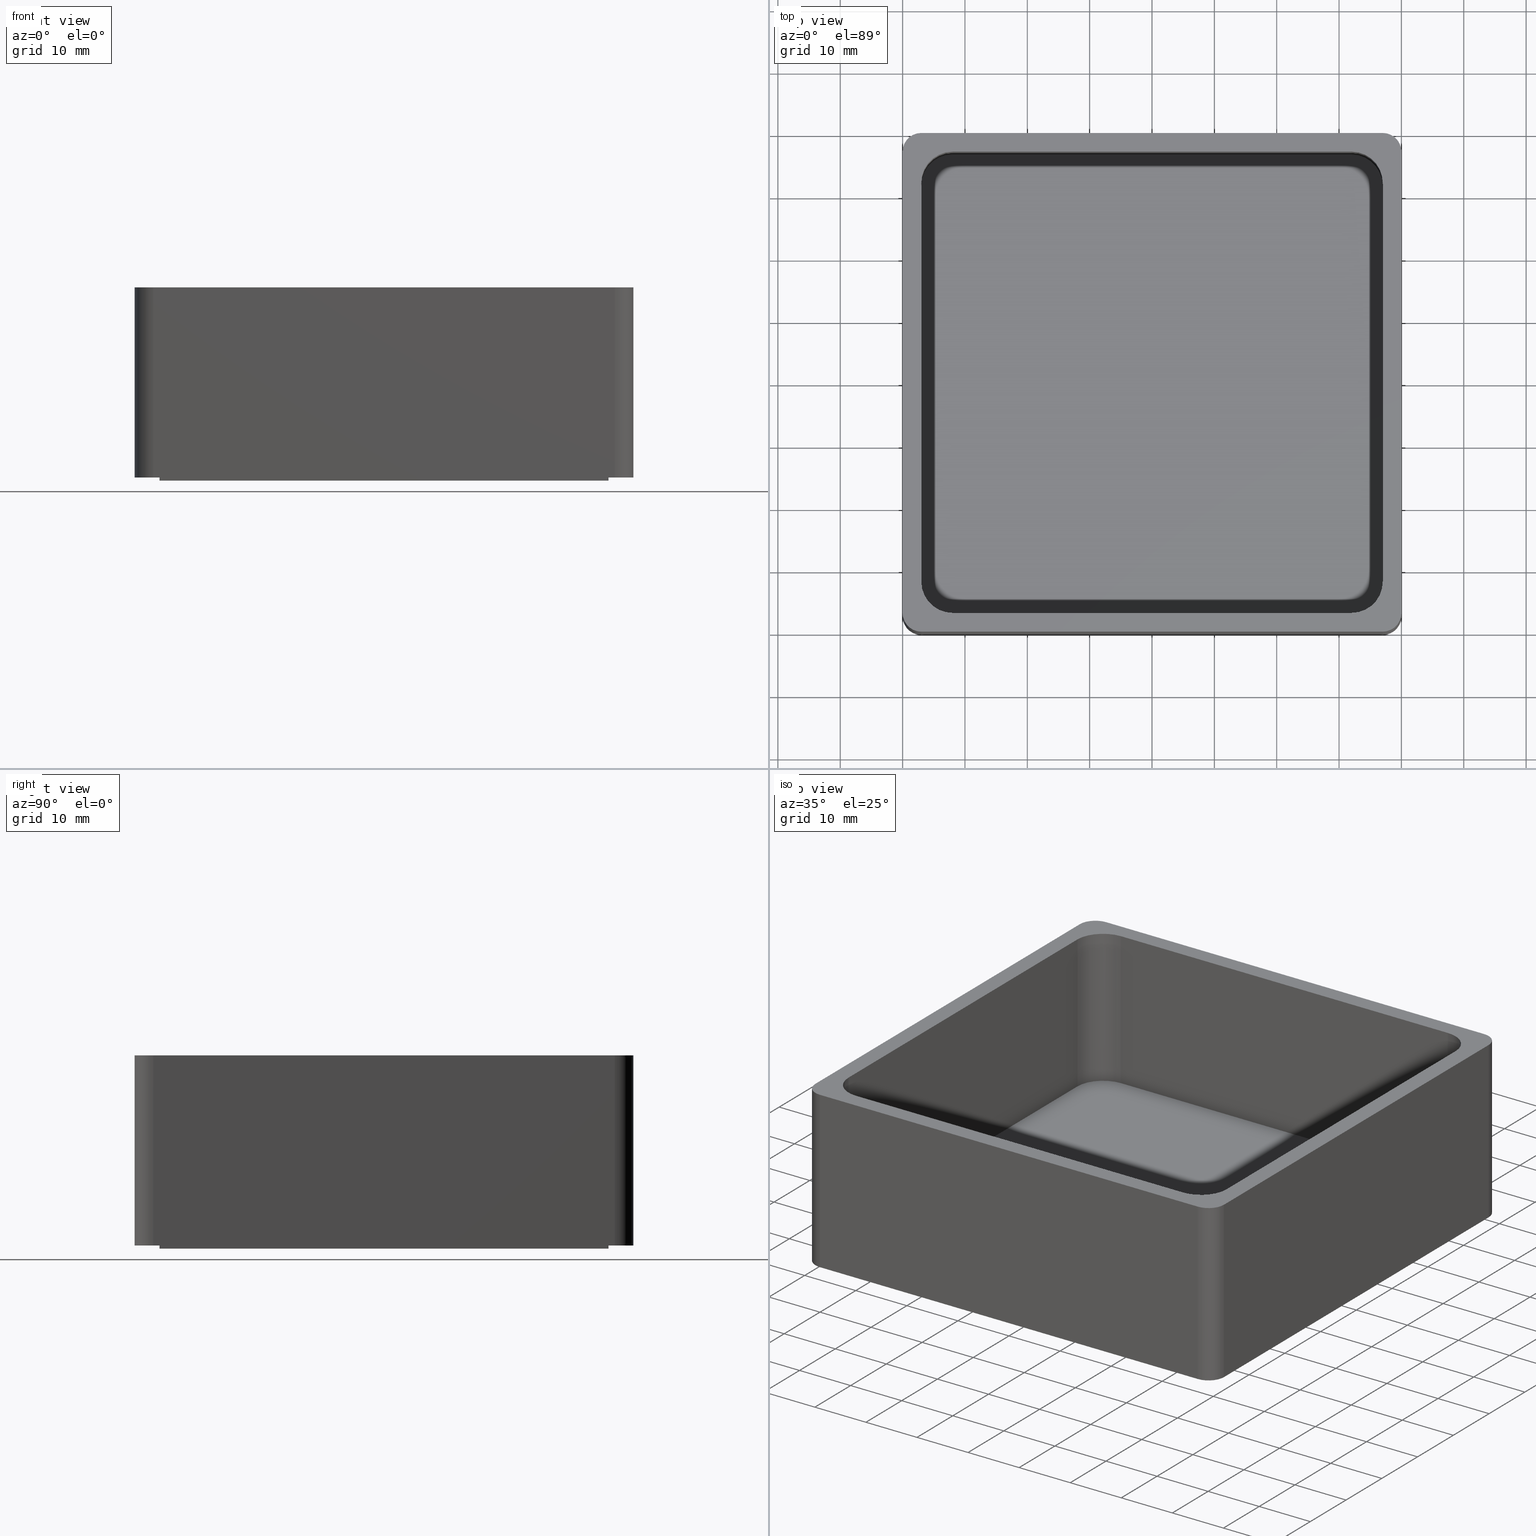
[diagram: canonical four-view strip — front | top / right | iso, engineering-drawing reading convention]
A machine part, canonical four-view strip (front | top / right | iso — engineering-drawing reading convention). The complete STEP part file that produces these views, byte-faithful:
ISO-10303-21;
HEADER;
/* Generated by software containing ST-Developer
 * from STEP Tools, Inc. (www.steptools.com) 
 */

FILE_DESCRIPTION(
/* description */ (''),
/* implementation_level */ '2;1');

FILE_NAME(
/* name */ '\\\\SYNOLOGYNAS\\web\\db2\\PR24-7575\\\X2\B3C4BA74\X0\\\DR
_PR24-7575.stp',
/* time_stamp */ '2022-10-14T15:53:04+09:00',
/* author */ ('user'),
/* organization */ (''),
/* preprocessor_version */ 'ST-DEVELOPER v15.6',
/* originating_system */ 'Autodesk Inventor 2015',
/* authorisation */ '');

FILE_SCHEMA (('AUTOMOTIVE_DESIGN { 1 0 10303 214 3 1 1 }'));
ENDSEC;

DATA;
#10=MECHANICAL_DESIGN_GEOMETRIC_PRESENTATION_REPRESENTATION('',(#13),#735);
#11=SHAPE_REPRESENTATION_RELATIONSHIP('SRR','None',#744,#12);
#12=ADVANCED_BREP_SHAPE_REPRESENTATION($,(#14),#734);
#13=STYLED_ITEM('',(#753),#14);
#14=MANIFOLD_SOLID_BREP('\X2\C194B9ACB4DC\X0\1',#439);
#15=FACE_BOUND('',#74,.T.);
#16=FACE_BOUND('',#82,.T.);
#17=PLANE('',#444);
#18=PLANE('',#448);
#19=PLANE('',#452);
#20=PLANE('',#456);
#21=PLANE('',#457);
#22=PLANE('',#458);
#23=PLANE('',#459);
#24=PLANE('',#460);
#25=PLANE('',#461);
#26=PLANE('',#462);
#27=PLANE('',#466);
#28=PLANE('',#467);
#29=PLANE('',#473);
#30=PLANE('',#476);
#31=PLANE('',#479);
#32=PLANE('',#480);
#33=FACE_OUTER_BOUND('',#57,.T.);
#34=FACE_OUTER_BOUND('',#58,.T.);
#35=FACE_OUTER_BOUND('',#59,.T.);
#36=FACE_OUTER_BOUND('',#60,.T.);
#37=FACE_OUTER_BOUND('',#61,.T.);
#38=FACE_OUTER_BOUND('',#62,.T.);
#39=FACE_OUTER_BOUND('',#63,.T.);
#40=FACE_OUTER_BOUND('',#64,.T.);
#41=FACE_OUTER_BOUND('',#65,.T.);
#42=FACE_OUTER_BOUND('',#66,.T.);
#43=FACE_OUTER_BOUND('',#67,.T.);
#44=FACE_OUTER_BOUND('',#68,.T.);
#45=FACE_OUTER_BOUND('',#69,.T.);
#46=FACE_OUTER_BOUND('',#70,.T.);
#47=FACE_OUTER_BOUND('',#71,.T.);
#48=FACE_OUTER_BOUND('',#72,.T.);
#49=FACE_OUTER_BOUND('',#73,.T.);
#50=FACE_OUTER_BOUND('',#75,.T.);
#51=FACE_OUTER_BOUND('',#76,.T.);
#52=FACE_OUTER_BOUND('',#77,.T.);
#53=FACE_OUTER_BOUND('',#78,.T.);
#54=FACE_OUTER_BOUND('',#79,.T.);
#55=FACE_OUTER_BOUND('',#80,.T.);
#56=FACE_OUTER_BOUND('',#81,.T.);
#57=EDGE_LOOP('',(#287,#288,#289,#290));
#58=EDGE_LOOP('',(#291,#292,#293,#294));
#59=EDGE_LOOP('',(#295,#296,#297,#298));
#60=EDGE_LOOP('',(#299,#300,#301,#302));
#61=EDGE_LOOP('',(#303,#304,#305,#306));
#62=EDGE_LOOP('',(#307,#308,#309,#310));
#63=EDGE_LOOP('',(#311,#312,#313,#314));
#64=EDGE_LOOP('',(#315,#316,#317,#318));
#65=EDGE_LOOP('',(#319,#320,#321,#322,#323,#324,#325,#326));
#66=EDGE_LOOP('',(#327,#328,#329,#330));
#67=EDGE_LOOP('',(#331,#332,#333,#334));
#68=EDGE_LOOP('',(#335,#336,#337,#338));
#69=EDGE_LOOP('',(#339,#340,#341,#342));
#70=EDGE_LOOP('',(#343,#344,#345,#346));
#71=EDGE_LOOP('',(#347,#348,#349,#350));
#72=EDGE_LOOP('',(#351,#352,#353,#354));
#73=EDGE_LOOP('',(#355,#356,#357,#358,#359,#360,#361,#362));
#74=EDGE_LOOP('',(#363,#364,#365,#366,#367,#368,#369,#370));
#75=EDGE_LOOP('',(#371,#372,#373,#374));
#76=EDGE_LOOP('',(#375,#376,#377,#378));
#77=EDGE_LOOP('',(#379,#380,#381,#382));
#78=EDGE_LOOP('',(#383,#384,#385,#386));
#79=EDGE_LOOP('',(#387,#388,#389,#390));
#80=EDGE_LOOP('',(#391,#392,#393,#394));
#81=EDGE_LOOP('',(#395,#396,#397,#398,#399,#400,#401,#402));
#82=EDGE_LOOP('',(#403,#404,#405,#406));
#83=LINE('',#613,#127);
#84=LINE('',#616,#128);
#85=LINE('',#619,#129);
#86=LINE('',#621,#130);
#87=LINE('',#622,#131);
#88=LINE('',#627,#132);
#89=LINE('',#631,#133);
#90=LINE('',#633,#134);
#91=LINE('',#634,#135);
#92=LINE('',#639,#136);
#93=LINE('',#643,#137);
#94=LINE('',#645,#138);
#95=LINE('',#646,#139);
#96=LINE('',#651,#140);
#97=LINE('',#654,#141);
#98=LINE('',#655,#142);
#99=LINE('',#660,#143);
#100=LINE('',#662,#144);
#101=LINE('',#664,#145);
#102=LINE('',#665,#146);
#103=LINE('',#668,#147);
#104=LINE('',#670,#148);
#105=LINE('',#671,#149);
#106=LINE('',#674,#150);
#107=LINE('',#676,#151);
#108=LINE('',#677,#152);
#109=LINE('',#679,#153);
#110=LINE('',#680,#154);
#111=LINE('',#687,#155);
#112=LINE('',#690,#156);
#113=LINE('',#693,#157);
#114=LINE('',#695,#158);
#115=LINE('',#696,#159);
#116=LINE('',#699,#160);
#117=LINE('',#703,#161);
#118=LINE('',#707,#162);
#119=LINE('',#711,#163);
#120=LINE('',#715,#164);
#121=LINE('',#716,#165);
#122=LINE('',#719,#166);
#123=LINE('',#722,#167);
#124=LINE('',#724,#168);
#125=LINE('',#727,#169);
#126=LINE('',#730,#170);
#127=VECTOR('',#487,26.);
#128=VECTOR('',#490,26.);
#129=VECTOR('',#493,64.);
#130=VECTOR('',#494,26.);
#131=VECTOR('',#495,64.);
#132=VECTOR('',#500,26.);
#133=VECTOR('',#505,64.);
#134=VECTOR('',#506,26.);
#135=VECTOR('',#507,64.);
#136=VECTOR('',#512,26.);
#137=VECTOR('',#517,64.);
#138=VECTOR('',#518,26.);
#139=VECTOR('',#519,64.);
#140=VECTOR('',#524,26.);
#141=VECTOR('',#529,64.);
#142=VECTOR('',#530,64.);
#143=VECTOR('',#535,72.);
#144=VECTOR('',#536,0.5);
#145=VECTOR('',#537,72.);
#146=VECTOR('',#538,0.5);
#147=VECTOR('',#541,72.);
#148=VECTOR('',#542,72.);
#149=VECTOR('',#543,0.5);
#150=VECTOR('',#546,72.);
#151=VECTOR('',#547,72.);
#152=VECTOR('',#548,0.5);
#153=VECTOR('',#551,72.);
#154=VECTOR('',#552,72.);
#155=VECTOR('',#559,30.5);
#156=VECTOR('',#562,30.5);
#157=VECTOR('',#565,74.);
#158=VECTOR('',#566,30.5);
#159=VECTOR('',#567,74.);
#160=VECTOR('',#570,74.);
#161=VECTOR('',#573,74.);
#162=VECTOR('',#576,74.);
#163=VECTOR('',#581,30.5);
#164=VECTOR('',#586,30.5);
#165=VECTOR('',#587,74.);
#166=VECTOR('',#590,30.5);
#167=VECTOR('',#593,30.5);
#168=VECTOR('',#596,74.);
#169=VECTOR('',#599,30.5);
#170=VECTOR('',#604,74.);
#171=CIRCLE('',#442,5.00000000000002);
#172=CIRCLE('',#443,5.00000000000002);
#173=CIRCLE('',#446,4.99999999999999);
#174=CIRCLE('',#447,4.99999999999999);
#175=CIRCLE('',#450,5.00000000000002);
#176=CIRCLE('',#451,5.00000000000002);
#177=CIRCLE('',#454,5.);
#178=CIRCLE('',#455,5.);
#179=CIRCLE('',#464,3.);
#180=CIRCLE('',#465,3.);
#181=CIRCLE('',#468,3.);
#182=CIRCLE('',#469,3.);
#183=CIRCLE('',#470,3.);
#184=CIRCLE('',#472,3.);
#185=CIRCLE('',#475,3.);
#186=CIRCLE('',#478,3.);
#187=VERTEX_POINT('',#609);
#188=VERTEX_POINT('',#610);
#189=VERTEX_POINT('',#612);
#190=VERTEX_POINT('',#614);
#191=VERTEX_POINT('',#618);
#192=VERTEX_POINT('',#620);
#193=VERTEX_POINT('',#624);
#194=VERTEX_POINT('',#626);
#195=VERTEX_POINT('',#630);
#196=VERTEX_POINT('',#632);
#197=VERTEX_POINT('',#636);
#198=VERTEX_POINT('',#638);
#199=VERTEX_POINT('',#642);
#200=VERTEX_POINT('',#644);
#201=VERTEX_POINT('',#648);
#202=VERTEX_POINT('',#650);
#203=VERTEX_POINT('',#658);
#204=VERTEX_POINT('',#659);
#205=VERTEX_POINT('',#661);
#206=VERTEX_POINT('',#663);
#207=VERTEX_POINT('',#667);
#208=VERTEX_POINT('',#669);
#209=VERTEX_POINT('',#673);
#210=VERTEX_POINT('',#675);
#211=VERTEX_POINT('',#683);
#212=VERTEX_POINT('',#684);
#213=VERTEX_POINT('',#686);
#214=VERTEX_POINT('',#688);
#215=VERTEX_POINT('',#692);
#216=VERTEX_POINT('',#694);
#217=VERTEX_POINT('',#698);
#218=VERTEX_POINT('',#700);
#219=VERTEX_POINT('',#702);
#220=VERTEX_POINT('',#704);
#221=VERTEX_POINT('',#706);
#222=VERTEX_POINT('',#710);
#223=VERTEX_POINT('',#714);
#224=VERTEX_POINT('',#718);
#225=VERTEX_POINT('',#720);
#226=VERTEX_POINT('',#726);
#227=EDGE_CURVE('',#187,#188,#171,.T.);
#228=EDGE_CURVE('',#187,#189,#83,.T.);
#229=EDGE_CURVE('',#189,#190,#172,.T.);
#230=EDGE_CURVE('',#188,#190,#84,.T.);
#231=EDGE_CURVE('',#191,#187,#85,.T.);
#232=EDGE_CURVE('',#191,#192,#86,.T.);
#233=EDGE_CURVE('',#192,#189,#87,.T.);
#234=EDGE_CURVE('',#193,#191,#173,.T.);
#235=EDGE_CURVE('',#193,#194,#88,.T.);
#236=EDGE_CURVE('',#194,#192,#174,.T.);
#237=EDGE_CURVE('',#195,#193,#89,.T.);
#238=EDGE_CURVE('',#195,#196,#90,.T.);
#239=EDGE_CURVE('',#196,#194,#91,.T.);
#240=EDGE_CURVE('',#197,#195,#175,.T.);
#241=EDGE_CURVE('',#197,#198,#92,.T.);
#242=EDGE_CURVE('',#198,#196,#176,.T.);
#243=EDGE_CURVE('',#199,#197,#93,.T.);
#244=EDGE_CURVE('',#199,#200,#94,.T.);
#245=EDGE_CURVE('',#200,#198,#95,.T.);
#246=EDGE_CURVE('',#201,#199,#177,.T.);
#247=EDGE_CURVE('',#201,#202,#96,.T.);
#248=EDGE_CURVE('',#202,#200,#178,.T.);
#249=EDGE_CURVE('',#188,#201,#97,.T.);
#250=EDGE_CURVE('',#190,#202,#98,.T.);
#251=EDGE_CURVE('',#203,#204,#99,.T.);
#252=EDGE_CURVE('',#203,#205,#100,.T.);
#253=EDGE_CURVE('',#206,#205,#101,.T.);
#254=EDGE_CURVE('',#204,#206,#102,.T.);
#255=EDGE_CURVE('',#204,#207,#103,.T.);
#256=EDGE_CURVE('',#208,#206,#104,.T.);
#257=EDGE_CURVE('',#207,#208,#105,.T.);
#258=EDGE_CURVE('',#207,#209,#106,.T.);
#259=EDGE_CURVE('',#210,#208,#107,.T.);
#260=EDGE_CURVE('',#209,#210,#108,.T.);
#261=EDGE_CURVE('',#209,#203,#109,.T.);
#262=EDGE_CURVE('',#205,#210,#110,.T.);
#263=EDGE_CURVE('',#211,#212,#179,.T.);
#264=EDGE_CURVE('',#212,#213,#111,.T.);
#265=EDGE_CURVE('',#213,#214,#180,.T.);
#266=EDGE_CURVE('',#214,#211,#112,.T.);
#267=EDGE_CURVE('',#215,#212,#113,.T.);
#268=EDGE_CURVE('',#216,#215,#114,.T.);
#269=EDGE_CURVE('',#216,#213,#115,.T.);
#270=EDGE_CURVE('',#211,#217,#116,.T.);
#271=EDGE_CURVE('',#218,#217,#181,.T.);
#272=EDGE_CURVE('',#218,#219,#117,.T.);
#273=EDGE_CURVE('',#220,#219,#182,.T.);
#274=EDGE_CURVE('',#220,#221,#118,.T.);
#275=EDGE_CURVE('',#215,#221,#183,.T.);
#276=EDGE_CURVE('',#221,#222,#119,.T.);
#277=EDGE_CURVE('',#222,#216,#184,.T.);
#278=EDGE_CURVE('',#223,#220,#120,.T.);
#279=EDGE_CURVE('',#223,#222,#121,.T.);
#280=EDGE_CURVE('',#217,#224,#122,.T.);
#281=EDGE_CURVE('',#224,#225,#185,.T.);
#282=EDGE_CURVE('',#225,#218,#123,.T.);
#283=EDGE_CURVE('',#214,#224,#124,.T.);
#284=EDGE_CURVE('',#219,#226,#125,.T.);
#285=EDGE_CURVE('',#226,#223,#186,.T.);
#286=EDGE_CURVE('',#225,#226,#126,.T.);
#287=ORIENTED_EDGE('',*,*,#227,.F.);
#288=ORIENTED_EDGE('',*,*,#228,.T.);
#289=ORIENTED_EDGE('',*,*,#229,.T.);
#290=ORIENTED_EDGE('',*,*,#230,.F.);
#291=ORIENTED_EDGE('',*,*,#231,.F.);
#292=ORIENTED_EDGE('',*,*,#232,.T.);
#293=ORIENTED_EDGE('',*,*,#233,.T.);
#294=ORIENTED_EDGE('',*,*,#228,.F.);
#295=ORIENTED_EDGE('',*,*,#234,.F.);
#296=ORIENTED_EDGE('',*,*,#235,.T.);
#297=ORIENTED_EDGE('',*,*,#236,.T.);
#298=ORIENTED_EDGE('',*,*,#232,.F.);
#299=ORIENTED_EDGE('',*,*,#237,.F.);
#300=ORIENTED_EDGE('',*,*,#238,.T.);
#301=ORIENTED_EDGE('',*,*,#239,.T.);
#302=ORIENTED_EDGE('',*,*,#235,.F.);
#303=ORIENTED_EDGE('',*,*,#240,.F.);
#304=ORIENTED_EDGE('',*,*,#241,.T.);
#305=ORIENTED_EDGE('',*,*,#242,.T.);
#306=ORIENTED_EDGE('',*,*,#238,.F.);
#307=ORIENTED_EDGE('',*,*,#243,.F.);
#308=ORIENTED_EDGE('',*,*,#244,.T.);
#309=ORIENTED_EDGE('',*,*,#245,.T.);
#310=ORIENTED_EDGE('',*,*,#241,.F.);
#311=ORIENTED_EDGE('',*,*,#246,.F.);
#312=ORIENTED_EDGE('',*,*,#247,.T.);
#313=ORIENTED_EDGE('',*,*,#248,.T.);
#314=ORIENTED_EDGE('',*,*,#244,.F.);
#315=ORIENTED_EDGE('',*,*,#249,.F.);
#316=ORIENTED_EDGE('',*,*,#230,.T.);
#317=ORIENTED_EDGE('',*,*,#250,.T.);
#318=ORIENTED_EDGE('',*,*,#247,.F.);
#319=ORIENTED_EDGE('',*,*,#250,.F.);
#320=ORIENTED_EDGE('',*,*,#229,.F.);
#321=ORIENTED_EDGE('',*,*,#233,.F.);
#322=ORIENTED_EDGE('',*,*,#236,.F.);
#323=ORIENTED_EDGE('',*,*,#239,.F.);
#324=ORIENTED_EDGE('',*,*,#242,.F.);
#325=ORIENTED_EDGE('',*,*,#245,.F.);
#326=ORIENTED_EDGE('',*,*,#248,.F.);
#327=ORIENTED_EDGE('',*,*,#251,.F.);
#328=ORIENTED_EDGE('',*,*,#252,.T.);
#329=ORIENTED_EDGE('',*,*,#253,.F.);
#330=ORIENTED_EDGE('',*,*,#254,.F.);
#331=ORIENTED_EDGE('',*,*,#255,.F.);
#332=ORIENTED_EDGE('',*,*,#254,.T.);
#333=ORIENTED_EDGE('',*,*,#256,.F.);
#334=ORIENTED_EDGE('',*,*,#257,.F.);
#335=ORIENTED_EDGE('',*,*,#258,.F.);
#336=ORIENTED_EDGE('',*,*,#257,.T.);
#337=ORIENTED_EDGE('',*,*,#259,.F.);
#338=ORIENTED_EDGE('',*,*,#260,.F.);
#339=ORIENTED_EDGE('',*,*,#261,.F.);
#340=ORIENTED_EDGE('',*,*,#260,.T.);
#341=ORIENTED_EDGE('',*,*,#262,.F.);
#342=ORIENTED_EDGE('',*,*,#252,.F.);
#343=ORIENTED_EDGE('',*,*,#262,.T.);
#344=ORIENTED_EDGE('',*,*,#259,.T.);
#345=ORIENTED_EDGE('',*,*,#256,.T.);
#346=ORIENTED_EDGE('',*,*,#253,.T.);
#347=ORIENTED_EDGE('',*,*,#263,.T.);
#348=ORIENTED_EDGE('',*,*,#264,.T.);
#349=ORIENTED_EDGE('',*,*,#265,.T.);
#350=ORIENTED_EDGE('',*,*,#266,.T.);
#351=ORIENTED_EDGE('',*,*,#264,.F.);
#352=ORIENTED_EDGE('',*,*,#267,.F.);
#353=ORIENTED_EDGE('',*,*,#268,.F.);
#354=ORIENTED_EDGE('',*,*,#269,.T.);
#355=ORIENTED_EDGE('',*,*,#263,.F.);
#356=ORIENTED_EDGE('',*,*,#270,.T.);
#357=ORIENTED_EDGE('',*,*,#271,.F.);
#358=ORIENTED_EDGE('',*,*,#272,.T.);
#359=ORIENTED_EDGE('',*,*,#273,.F.);
#360=ORIENTED_EDGE('',*,*,#274,.T.);
#361=ORIENTED_EDGE('',*,*,#275,.F.);
#362=ORIENTED_EDGE('',*,*,#267,.T.);
#363=ORIENTED_EDGE('',*,*,#227,.T.);
#364=ORIENTED_EDGE('',*,*,#249,.T.);
#365=ORIENTED_EDGE('',*,*,#246,.T.);
#366=ORIENTED_EDGE('',*,*,#243,.T.);
#367=ORIENTED_EDGE('',*,*,#240,.T.);
#368=ORIENTED_EDGE('',*,*,#237,.T.);
#369=ORIENTED_EDGE('',*,*,#234,.T.);
#370=ORIENTED_EDGE('',*,*,#231,.T.);
#371=ORIENTED_EDGE('',*,*,#275,.T.);
#372=ORIENTED_EDGE('',*,*,#276,.T.);
#373=ORIENTED_EDGE('',*,*,#277,.T.);
#374=ORIENTED_EDGE('',*,*,#268,.T.);
#375=ORIENTED_EDGE('',*,*,#276,.F.);
#376=ORIENTED_EDGE('',*,*,#274,.F.);
#377=ORIENTED_EDGE('',*,*,#278,.F.);
#378=ORIENTED_EDGE('',*,*,#279,.T.);
#379=ORIENTED_EDGE('',*,*,#271,.T.);
#380=ORIENTED_EDGE('',*,*,#280,.T.);
#381=ORIENTED_EDGE('',*,*,#281,.T.);
#382=ORIENTED_EDGE('',*,*,#282,.T.);
#383=ORIENTED_EDGE('',*,*,#266,.F.);
#384=ORIENTED_EDGE('',*,*,#283,.T.);
#385=ORIENTED_EDGE('',*,*,#280,.F.);
#386=ORIENTED_EDGE('',*,*,#270,.F.);
#387=ORIENTED_EDGE('',*,*,#273,.T.);
#388=ORIENTED_EDGE('',*,*,#284,.T.);
#389=ORIENTED_EDGE('',*,*,#285,.T.);
#390=ORIENTED_EDGE('',*,*,#278,.T.);
#391=ORIENTED_EDGE('',*,*,#282,.F.);
#392=ORIENTED_EDGE('',*,*,#286,.T.);
#393=ORIENTED_EDGE('',*,*,#284,.F.);
#394=ORIENTED_EDGE('',*,*,#272,.F.);
#395=ORIENTED_EDGE('',*,*,#265,.F.);
#396=ORIENTED_EDGE('',*,*,#269,.F.);
#397=ORIENTED_EDGE('',*,*,#277,.F.);
#398=ORIENTED_EDGE('',*,*,#279,.F.);
#399=ORIENTED_EDGE('',*,*,#285,.F.);
#400=ORIENTED_EDGE('',*,*,#286,.F.);
#401=ORIENTED_EDGE('',*,*,#281,.F.);
#402=ORIENTED_EDGE('',*,*,#283,.F.);
#403=ORIENTED_EDGE('',*,*,#251,.T.);
#404=ORIENTED_EDGE('',*,*,#255,.T.);
#405=ORIENTED_EDGE('',*,*,#258,.T.);
#406=ORIENTED_EDGE('',*,*,#261,.T.);
#407=CYLINDRICAL_SURFACE('',#441,5.00000000000002);
#408=CYLINDRICAL_SURFACE('',#445,4.99999999999999);
#409=CYLINDRICAL_SURFACE('',#449,5.00000000000002);
#410=CYLINDRICAL_SURFACE('',#453,5.);
#411=CYLINDRICAL_SURFACE('',#463,3.);
#412=CYLINDRICAL_SURFACE('',#471,3.);
#413=CYLINDRICAL_SURFACE('',#474,3.);
#414=CYLINDRICAL_SURFACE('',#477,3.);
#415=ADVANCED_FACE('',(#33),#407,.F.);
#416=ADVANCED_FACE('',(#34),#17,.F.);
#417=ADVANCED_FACE('',(#35),#408,.F.);
#418=ADVANCED_FACE('',(#36),#18,.F.);
#419=ADVANCED_FACE('',(#37),#409,.F.);
#420=ADVANCED_FACE('',(#38),#19,.F.);
#421=ADVANCED_FACE('',(#39),#410,.F.);
#422=ADVANCED_FACE('',(#40),#20,.F.);
#423=ADVANCED_FACE('',(#41),#21,.T.);
#424=ADVANCED_FACE('',(#42),#22,.T.);
#425=ADVANCED_FACE('',(#43),#23,.T.);
#426=ADVANCED_FACE('',(#44),#24,.T.);
#427=ADVANCED_FACE('',(#45),#25,.T.);
#428=ADVANCED_FACE('',(#46),#26,.T.);
#429=ADVANCED_FACE('',(#47),#411,.T.);
#430=ADVANCED_FACE('',(#48),#27,.T.);
#431=ADVANCED_FACE('',(#49,#15),#28,.T.);
#432=ADVANCED_FACE('',(#50),#412,.T.);
#433=ADVANCED_FACE('',(#51),#29,.T.);
#434=ADVANCED_FACE('',(#52),#413,.T.);
#435=ADVANCED_FACE('',(#53),#30,.T.);
#436=ADVANCED_FACE('',(#54),#414,.T.);
#437=ADVANCED_FACE('',(#55),#31,.T.);
#438=ADVANCED_FACE('',(#56,#16),#32,.F.);
#439=CLOSED_SHELL('',(#415,#416,#417,#418,#419,#420,#421,#422,#423,#424,
#425,#426,#427,#428,#429,#430,#431,#432,#433,#434,#435,#436,#437,#438));
#440=AXIS2_PLACEMENT_3D('placement',#607,#481,#482);
#441=AXIS2_PLACEMENT_3D('',#608,#483,#484);
#442=AXIS2_PLACEMENT_3D('',#611,#485,#486);
#443=AXIS2_PLACEMENT_3D('',#615,#488,#489);
#444=AXIS2_PLACEMENT_3D('',#617,#491,#492);
#445=AXIS2_PLACEMENT_3D('',#623,#496,#497);
#446=AXIS2_PLACEMENT_3D('',#625,#498,#499);
#447=AXIS2_PLACEMENT_3D('',#628,#501,#502);
#448=AXIS2_PLACEMENT_3D('',#629,#503,#504);
#449=AXIS2_PLACEMENT_3D('',#635,#508,#509);
#450=AXIS2_PLACEMENT_3D('',#637,#510,#511);
#451=AXIS2_PLACEMENT_3D('',#640,#513,#514);
#452=AXIS2_PLACEMENT_3D('',#641,#515,#516);
#453=AXIS2_PLACEMENT_3D('',#647,#520,#521);
#454=AXIS2_PLACEMENT_3D('',#649,#522,#523);
#455=AXIS2_PLACEMENT_3D('',#652,#525,#526);
#456=AXIS2_PLACEMENT_3D('',#653,#527,#528);
#457=AXIS2_PLACEMENT_3D('',#656,#531,#532);
#458=AXIS2_PLACEMENT_3D('',#657,#533,#534);
#459=AXIS2_PLACEMENT_3D('',#666,#539,#540);
#460=AXIS2_PLACEMENT_3D('',#672,#544,#545);
#461=AXIS2_PLACEMENT_3D('',#678,#549,#550);
#462=AXIS2_PLACEMENT_3D('',#681,#553,#554);
#463=AXIS2_PLACEMENT_3D('',#682,#555,#556);
#464=AXIS2_PLACEMENT_3D('',#685,#557,#558);
#465=AXIS2_PLACEMENT_3D('',#689,#560,#561);
#466=AXIS2_PLACEMENT_3D('',#691,#563,#564);
#467=AXIS2_PLACEMENT_3D('',#697,#568,#569);
#468=AXIS2_PLACEMENT_3D('',#701,#571,#572);
#469=AXIS2_PLACEMENT_3D('',#705,#574,#575);
#470=AXIS2_PLACEMENT_3D('',#708,#577,#578);
#471=AXIS2_PLACEMENT_3D('',#709,#579,#580);
#472=AXIS2_PLACEMENT_3D('',#712,#582,#583);
#473=AXIS2_PLACEMENT_3D('',#713,#584,#585);
#474=AXIS2_PLACEMENT_3D('',#717,#588,#589);
#475=AXIS2_PLACEMENT_3D('',#721,#591,#592);
#476=AXIS2_PLACEMENT_3D('',#723,#594,#595);
#477=AXIS2_PLACEMENT_3D('',#725,#597,#598);
#478=AXIS2_PLACEMENT_3D('',#728,#600,#601);
#479=AXIS2_PLACEMENT_3D('',#729,#602,#603);
#480=AXIS2_PLACEMENT_3D('',#731,#605,#606);
#481=DIRECTION('axis',(0.,0.,1.));
#482=DIRECTION('refdir',(1.,0.,0.));
#483=DIRECTION('center_axis',(0.,0.,-1.));
#484=DIRECTION('ref_axis',(-1.,-3.55271367880049E-15,0.));
#485=DIRECTION('center_axis',(0.,0.,-1.));
#486=DIRECTION('ref_axis',(-1.,-3.55271367880049E-15,0.));
#487=DIRECTION('',(0.,0.,-1.));
#488=DIRECTION('center_axis',(0.,0.,-1.));
#489=DIRECTION('ref_axis',(-1.,-3.55271367880049E-15,0.));
#490=DIRECTION('',(0.,0.,-1.));
#491=DIRECTION('center_axis',(2.08166817117217E-16,-1.,0.));
#492=DIRECTION('ref_axis',(-1.,0.,0.));
#493=DIRECTION('',(-1.,-2.08166817117217E-16,0.));
#494=DIRECTION('',(0.,0.,-1.));
#495=DIRECTION('',(-1.,-2.08166817117217E-16,0.));
#496=DIRECTION('center_axis',(0.,0.,-1.));
#497=DIRECTION('ref_axis',(-1.77635683940025E-15,-1.,0.));
#498=DIRECTION('center_axis',(0.,0.,-1.));
#499=DIRECTION('ref_axis',(-1.77635683940025E-15,-1.,0.));
#500=DIRECTION('',(0.,0.,-1.));
#501=DIRECTION('center_axis',(0.,0.,-1.));
#502=DIRECTION('ref_axis',(-1.77635683940025E-15,-1.,0.));
#503=DIRECTION('center_axis',(1.,1.38777878078145E-16,0.));
#504=DIRECTION('ref_axis',(0.,-1.,0.));
#505=DIRECTION('',(1.38777878078145E-16,-1.,0.));
#506=DIRECTION('',(0.,0.,-1.));
#507=DIRECTION('',(1.38777878078145E-16,-1.,0.));
#508=DIRECTION('center_axis',(0.,0.,-1.));
#509=DIRECTION('ref_axis',(1.,3.55271367880049E-15,0.));
#510=DIRECTION('center_axis',(0.,0.,-1.));
#511=DIRECTION('ref_axis',(1.,3.55271367880049E-15,0.));
#512=DIRECTION('',(0.,0.,-1.));
#513=DIRECTION('center_axis',(0.,0.,-1.));
#514=DIRECTION('ref_axis',(1.,3.55271367880049E-15,0.));
#515=DIRECTION('center_axis',(0.,1.,0.));
#516=DIRECTION('ref_axis',(1.,0.,0.));
#517=DIRECTION('',(1.,0.,0.));
#518=DIRECTION('',(0.,0.,-1.));
#519=DIRECTION('',(1.,0.,0.));
#520=DIRECTION('center_axis',(0.,0.,-1.));
#521=DIRECTION('ref_axis',(8.88178419700126E-16,1.,0.));
#522=DIRECTION('center_axis',(0.,0.,-1.));
#523=DIRECTION('ref_axis',(8.88178419700126E-16,1.,0.));
#524=DIRECTION('',(0.,0.,-1.));
#525=DIRECTION('center_axis',(0.,0.,-1.));
#526=DIRECTION('ref_axis',(8.88178419700126E-16,1.,0.));
#527=DIRECTION('center_axis',(-1.,-2.77555756156289E-16,0.));
#528=DIRECTION('ref_axis',(0.,1.,0.));
#529=DIRECTION('',(-2.77555756156289E-16,1.,0.));
#530=DIRECTION('',(-2.77555756156289E-16,1.,0.));
#531=DIRECTION('center_axis',(0.,0.,1.));
#532=DIRECTION('ref_axis',(1.,0.,0.));
#533=DIRECTION('center_axis',(1.,-1.85037170770859E-16,0.));
#534=DIRECTION('ref_axis',(0.,-1.,0.));
#535=DIRECTION('',(1.85037170770859E-16,1.,0.));
#536=DIRECTION('',(0.,0.,-1.));
#537=DIRECTION('',(-1.85037170770859E-16,-1.,0.));
#538=DIRECTION('',(0.,0.,-1.));
#539=DIRECTION('center_axis',(2.46716227694479E-16,1.,0.));
#540=DIRECTION('ref_axis',(1.,0.,0.));
#541=DIRECTION('',(-1.,2.46716227694479E-16,0.));
#542=DIRECTION('',(1.,-2.46716227694479E-16,0.));
#543=DIRECTION('',(0.,0.,-1.));
#544=DIRECTION('center_axis',(-1.,3.08395284618099E-16,0.));
#545=DIRECTION('ref_axis',(0.,1.,0.));
#546=DIRECTION('',(-3.08395284618099E-16,-1.,0.));
#547=DIRECTION('',(3.08395284618099E-16,1.,0.));
#548=DIRECTION('',(0.,0.,-1.));
#549=DIRECTION('center_axis',(-1.85037170770859E-16,-1.,0.));
#550=DIRECTION('ref_axis',(-1.,0.,0.));
#551=DIRECTION('',(1.,-1.85037170770859E-16,0.));
#552=DIRECTION('',(-1.,1.85037170770859E-16,0.));
#553=DIRECTION('center_axis',(0.,0.,-1.));
#554=DIRECTION('ref_axis',(-1.,0.,0.));
#555=DIRECTION('center_axis',(0.,0.,1.));
#556=DIRECTION('ref_axis',(0.707106781186547,0.707106781186547,0.));
#557=DIRECTION('center_axis',(0.,0.,-1.));
#558=DIRECTION('ref_axis',(0.707106781186547,0.707106781186547,0.));
#559=DIRECTION('',(0.,0.,-1.));
#560=DIRECTION('center_axis',(0.,0.,1.));
#561=DIRECTION('ref_axis',(0.707106781186547,0.707106781186547,0.));
#562=DIRECTION('',(0.,0.,1.));
#563=DIRECTION('center_axis',(1.,5.55111512312578E-17,0.));
#564=DIRECTION('ref_axis',(0.,1.,0.));
#565=DIRECTION('',(-5.55111512312578E-17,1.,0.));
#566=DIRECTION('',(0.,0.,1.));
#567=DIRECTION('',(-5.55111512312578E-17,1.,0.));
#568=DIRECTION('center_axis',(0.,0.,1.));
#569=DIRECTION('ref_axis',(1.,0.,0.));
#570=DIRECTION('',(-1.,-5.55111512312578E-17,0.));
#571=DIRECTION('center_axis',(0.,0.,-1.));
#572=DIRECTION('ref_axis',(-0.707106781186547,0.707106781186547,0.));
#573=DIRECTION('',(2.77555756156289E-16,-1.,0.));
#574=DIRECTION('center_axis',(0.,0.,-1.));
#575=DIRECTION('ref_axis',(-0.707106781186546,-0.707106781186549,0.));
#576=DIRECTION('',(1.,0.,0.));
#577=DIRECTION('center_axis',(0.,0.,-1.));
#578=DIRECTION('ref_axis',(0.707106781186546,-0.707106781186549,0.));
#579=DIRECTION('center_axis',(0.,0.,1.));
#580=DIRECTION('ref_axis',(0.707106781186546,-0.707106781186549,0.));
#581=DIRECTION('',(0.,0.,-1.));
#582=DIRECTION('center_axis',(0.,0.,1.));
#583=DIRECTION('ref_axis',(0.707106781186546,-0.707106781186549,0.));
#584=DIRECTION('center_axis',(0.,-1.,0.));
#585=DIRECTION('ref_axis',(1.,0.,0.));
#586=DIRECTION('',(0.,0.,1.));
#587=DIRECTION('',(1.,0.,0.));
#588=DIRECTION('center_axis',(0.,0.,1.));
#589=DIRECTION('ref_axis',(-0.707106781186547,0.707106781186547,0.));
#590=DIRECTION('',(0.,0.,-1.));
#591=DIRECTION('center_axis',(0.,0.,1.));
#592=DIRECTION('ref_axis',(-0.707106781186547,0.707106781186547,0.));
#593=DIRECTION('',(0.,0.,1.));
#594=DIRECTION('center_axis',(-5.55111512312578E-17,1.,0.));
#595=DIRECTION('ref_axis',(-1.,0.,0.));
#596=DIRECTION('',(-1.,-5.55111512312578E-17,0.));
#597=DIRECTION('center_axis',(0.,0.,1.));
#598=DIRECTION('ref_axis',(-0.707106781186546,-0.707106781186549,0.));
#599=DIRECTION('',(0.,0.,-1.));
#600=DIRECTION('center_axis',(0.,0.,1.));
#601=DIRECTION('ref_axis',(-0.707106781186546,-0.707106781186549,0.));
#602=DIRECTION('center_axis',(-1.,-2.77555756156289E-16,0.));
#603=DIRECTION('ref_axis',(0.,-1.,0.));
#604=DIRECTION('',(2.77555756156289E-16,-1.,0.));
#605=DIRECTION('center_axis',(0.,0.,1.));
#606=DIRECTION('ref_axis',(1.,0.,0.));
#607=CARTESIAN_POINT('',(0.,0.,0.));
#608=CARTESIAN_POINT('Origin',(-32.,-32.,30.5));
#609=CARTESIAN_POINT('',(-32.,-37.,30.5));
#610=CARTESIAN_POINT('',(-37.,-32.,30.5));
#611=CARTESIAN_POINT('Origin',(-32.,-32.,30.5));
#612=CARTESIAN_POINT('',(-32.,-37.,4.5));
#613=CARTESIAN_POINT('',(-32.,-37.,30.5));
#614=CARTESIAN_POINT('',(-37.,-32.,4.5));
#615=CARTESIAN_POINT('Origin',(-32.,-32.,4.5));
#616=CARTESIAN_POINT('',(-37.,-32.,30.5));
#617=CARTESIAN_POINT('Origin',(32.,-37.,30.5));
#618=CARTESIAN_POINT('',(32.,-37.,30.5));
#619=CARTESIAN_POINT('',(16.,-37.,30.5));
#620=CARTESIAN_POINT('',(32.,-37.,4.5));
#621=CARTESIAN_POINT('',(32.,-37.,30.5));
#622=CARTESIAN_POINT('',(-32.,-37.,4.5));
#623=CARTESIAN_POINT('Origin',(32.,-32.,30.5));
#624=CARTESIAN_POINT('',(37.,-32.,30.5));
#625=CARTESIAN_POINT('Origin',(32.,-32.,30.5));
#626=CARTESIAN_POINT('',(37.,-32.,4.5));
#627=CARTESIAN_POINT('',(37.,-32.,30.5));
#628=CARTESIAN_POINT('Origin',(32.,-32.,4.5));
#629=CARTESIAN_POINT('Origin',(37.,32.,30.5));
#630=CARTESIAN_POINT('',(37.,32.,30.5));
#631=CARTESIAN_POINT('',(37.,16.,30.5));
#632=CARTESIAN_POINT('',(37.,32.,4.5));
#633=CARTESIAN_POINT('',(37.,32.,30.5));
#634=CARTESIAN_POINT('',(37.,-32.,4.5));
#635=CARTESIAN_POINT('Origin',(32.,32.,30.5));
#636=CARTESIAN_POINT('',(32.,37.,30.5));
#637=CARTESIAN_POINT('Origin',(32.,32.,30.5));
#638=CARTESIAN_POINT('',(32.,37.,4.5));
#639=CARTESIAN_POINT('',(32.,37.,30.5));
#640=CARTESIAN_POINT('Origin',(32.,32.,4.5));
#641=CARTESIAN_POINT('Origin',(-32.,37.,30.5));
#642=CARTESIAN_POINT('',(-32.,37.,30.5));
#643=CARTESIAN_POINT('',(-16.,37.,30.5));
#644=CARTESIAN_POINT('',(-32.,37.,4.5));
#645=CARTESIAN_POINT('',(-32.,37.,30.5));
#646=CARTESIAN_POINT('',(32.,37.,4.5));
#647=CARTESIAN_POINT('Origin',(-32.,32.,30.5));
#648=CARTESIAN_POINT('',(-37.,32.,30.5));
#649=CARTESIAN_POINT('Origin',(-32.,32.,30.5));
#650=CARTESIAN_POINT('',(-37.,32.,4.5));
#651=CARTESIAN_POINT('',(-37.,32.,30.5));
#652=CARTESIAN_POINT('Origin',(-32.,32.,4.5));
#653=CARTESIAN_POINT('Origin',(-37.,-32.,30.5));
#654=CARTESIAN_POINT('',(-37.,-16.,30.5));
#655=CARTESIAN_POINT('',(-37.,32.,4.5));
#656=CARTESIAN_POINT('Origin',(5.24210973356669E-15,3.81244344259395E-15,
4.49999999999999));
#657=CARTESIAN_POINT('Origin',(36.,36.,0.));
#658=CARTESIAN_POINT('',(36.,-36.,0.));
#659=CARTESIAN_POINT('',(36.,36.,0.));
#660=CARTESIAN_POINT('',(36.,18.,0.));
#661=CARTESIAN_POINT('',(36.,-36.,-0.5));
#662=CARTESIAN_POINT('',(36.,-36.,0.));
#663=CARTESIAN_POINT('',(36.,36.,-0.5));
#664=CARTESIAN_POINT('',(36.,-36.,-0.5));
#665=CARTESIAN_POINT('',(36.,36.,0.));
#666=CARTESIAN_POINT('Origin',(-36.,36.,0.));
#667=CARTESIAN_POINT('',(-36.,36.,0.));
#668=CARTESIAN_POINT('',(-18.,36.,0.));
#669=CARTESIAN_POINT('',(-36.,36.,-0.5));
#670=CARTESIAN_POINT('',(36.,36.,-0.5));
#671=CARTESIAN_POINT('',(-36.,36.,0.));
#672=CARTESIAN_POINT('Origin',(-36.,-36.,0.));
#673=CARTESIAN_POINT('',(-36.,-36.,0.));
#674=CARTESIAN_POINT('',(-36.,-18.,0.));
#675=CARTESIAN_POINT('',(-36.,-36.,-0.5));
#676=CARTESIAN_POINT('',(-36.,36.,-0.5));
#677=CARTESIAN_POINT('',(-36.,-36.,0.));
#678=CARTESIAN_POINT('Origin',(36.,-36.,0.));
#679=CARTESIAN_POINT('',(18.,-36.,0.));
#680=CARTESIAN_POINT('',(-36.,-36.,-0.5));
#681=CARTESIAN_POINT('Origin',(0.,-4.44089209850063E-15,-0.5));
#682=CARTESIAN_POINT('Origin',(37.,37.,0.));
#683=CARTESIAN_POINT('',(37.,40.,30.5));
#684=CARTESIAN_POINT('',(40.,37.,30.5));
#685=CARTESIAN_POINT('Origin',(37.,37.,30.5));
#686=CARTESIAN_POINT('',(40.,37.,0.));
#687=CARTESIAN_POINT('',(40.,37.,0.));
#688=CARTESIAN_POINT('',(37.,40.,0.));
#689=CARTESIAN_POINT('Origin',(37.,37.,0.));
#690=CARTESIAN_POINT('',(37.,40.,0.));
#691=CARTESIAN_POINT('Origin',(40.,-40.,0.));
#692=CARTESIAN_POINT('',(40.,-37.,30.5));
#693=CARTESIAN_POINT('',(40.,-40.,30.5));
#694=CARTESIAN_POINT('',(40.,-37.,0.));
#695=CARTESIAN_POINT('',(40.,-37.,0.));
#696=CARTESIAN_POINT('',(40.,-40.,0.));
#697=CARTESIAN_POINT('Origin',(8.88178419700125E-15,4.44089209850063E-15,
30.5));
#698=CARTESIAN_POINT('',(-37.,40.,30.5));
#699=CARTESIAN_POINT('',(40.,40.,30.5));
#700=CARTESIAN_POINT('',(-40.,37.,30.5));
#701=CARTESIAN_POINT('Origin',(-37.,37.,30.5));
#702=CARTESIAN_POINT('',(-40.,-37.,30.5));
#703=CARTESIAN_POINT('',(-40.,40.,30.5));
#704=CARTESIAN_POINT('',(-37.,-40.,30.5));
#705=CARTESIAN_POINT('Origin',(-37.,-37.,30.5));
#706=CARTESIAN_POINT('',(37.,-40.,30.5));
#707=CARTESIAN_POINT('',(-40.,-40.,30.5));
#708=CARTESIAN_POINT('Origin',(37.,-37.,30.5));
#709=CARTESIAN_POINT('Origin',(37.,-37.,0.));
#710=CARTESIAN_POINT('',(37.,-40.,0.));
#711=CARTESIAN_POINT('',(37.,-40.,0.));
#712=CARTESIAN_POINT('Origin',(37.,-37.,0.));
#713=CARTESIAN_POINT('Origin',(-40.,-40.,0.));
#714=CARTESIAN_POINT('',(-37.,-40.,0.));
#715=CARTESIAN_POINT('',(-37.,-40.,0.));
#716=CARTESIAN_POINT('',(-40.,-40.,0.));
#717=CARTESIAN_POINT('Origin',(-37.,37.,0.));
#718=CARTESIAN_POINT('',(-37.,40.,0.));
#719=CARTESIAN_POINT('',(-37.,40.,0.));
#720=CARTESIAN_POINT('',(-40.,37.,0.));
#721=CARTESIAN_POINT('Origin',(-37.,37.,0.));
#722=CARTESIAN_POINT('',(-40.,37.,0.));
#723=CARTESIAN_POINT('Origin',(40.,40.,0.));
#724=CARTESIAN_POINT('',(40.,40.,0.));
#725=CARTESIAN_POINT('Origin',(-37.,-37.,0.));
#726=CARTESIAN_POINT('',(-40.,-37.,0.));
#727=CARTESIAN_POINT('',(-40.,-37.,0.));
#728=CARTESIAN_POINT('Origin',(-37.,-37.,0.));
#729=CARTESIAN_POINT('Origin',(-40.,40.,0.));
#730=CARTESIAN_POINT('',(-40.,40.,0.));
#731=CARTESIAN_POINT('Origin',(6.66133814775094E-15,3.33066907387547E-15,
0.));
#732=UNCERTAINTY_MEASURE_WITH_UNIT(LENGTH_MEASURE(0.01),#736,
'DISTANCE_ACCURACY_VALUE',
'Maximum model space distance between geometric entities at asserted c
onnectivities');
#733=UNCERTAINTY_MEASURE_WITH_UNIT(LENGTH_MEASURE(1.E-6),#736,
'DISTANCE_ACCURACY_VALUE',
'Maximum model space distance between geometric entities at asserted c
onnectivities');
#734=(
GEOMETRIC_REPRESENTATION_CONTEXT(3)
GLOBAL_UNCERTAINTY_ASSIGNED_CONTEXT((#732))
GLOBAL_UNIT_ASSIGNED_CONTEXT((#736,#739,#737))
REPRESENTATION_CONTEXT('','3D')
);
#735=(
GEOMETRIC_REPRESENTATION_CONTEXT(3)
GLOBAL_UNCERTAINTY_ASSIGNED_CONTEXT((#733))
GLOBAL_UNIT_ASSIGNED_CONTEXT((#736,#739,#737))
REPRESENTATION_CONTEXT('','3D')
);
#736=(
LENGTH_UNIT()
NAMED_UNIT(*)
SI_UNIT(.MILLI.,.METRE.)
);
#737=(
NAMED_UNIT(*)
SI_UNIT($,.STERADIAN.)
SOLID_ANGLE_UNIT()
);
#738=DIMENSIONAL_EXPONENTS(0.,0.,0.,0.,0.,0.,0.);
#739=(
CONVERSION_BASED_UNIT('degree',#741)
NAMED_UNIT(#738)
PLANE_ANGLE_UNIT()
);
#740=(
NAMED_UNIT(*)
PLANE_ANGLE_UNIT()
SI_UNIT($,.RADIAN.)
);
#741=PLANE_ANGLE_MEASURE_WITH_UNIT(PLANE_ANGLE_MEASURE(0.01745329252),#740);
#742=SHAPE_DEFINITION_REPRESENTATION(#743,#744);
#743=PRODUCT_DEFINITION_SHAPE('',$,#746);
#744=SHAPE_REPRESENTATION('',(#440),#734);
#745=PRODUCT_DEFINITION_CONTEXT('part definition',#750,'design');
#746=PRODUCT_DEFINITION('DR_PR24-7575','DR_PR24-7575',#747,#745);
#747=PRODUCT_DEFINITION_FORMATION('',$,#752);
#748=PRODUCT_RELATED_PRODUCT_CATEGORY('DR_PR24-7575','DR_PR24-7575',(#752));
#749=APPLICATION_PROTOCOL_DEFINITION('international standard',
'automotive_design',2009,#750);
#750=APPLICATION_CONTEXT(
'Core Data for Automotive Mechanical Design Process');
#751=PRODUCT_CONTEXT('part definition',#750,'mechanical');
#752=PRODUCT('DR_PR24-7575','DR_PR24-7575',$,(#751));
#753=PRESENTATION_STYLE_ASSIGNMENT((#754));
#754=SURFACE_STYLE_USAGE(.BOTH.,#755);
#755=SURFACE_SIDE_STYLE($,(#756));
#756=SURFACE_STYLE_FILL_AREA(#757);
#757=FILL_AREA_STYLE($,(#758));
#758=FILL_AREA_STYLE_COLOUR($,#759);
#759=COLOUR_RGB('',1.,1.,1.);
ENDSEC;
END-ISO-10303-21;
